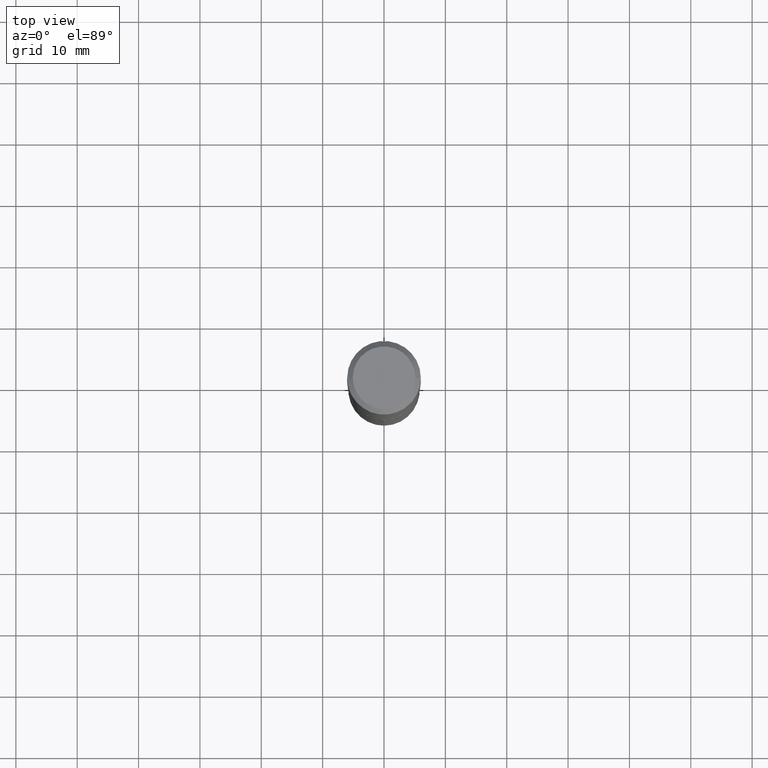
[diagram: clean part render]
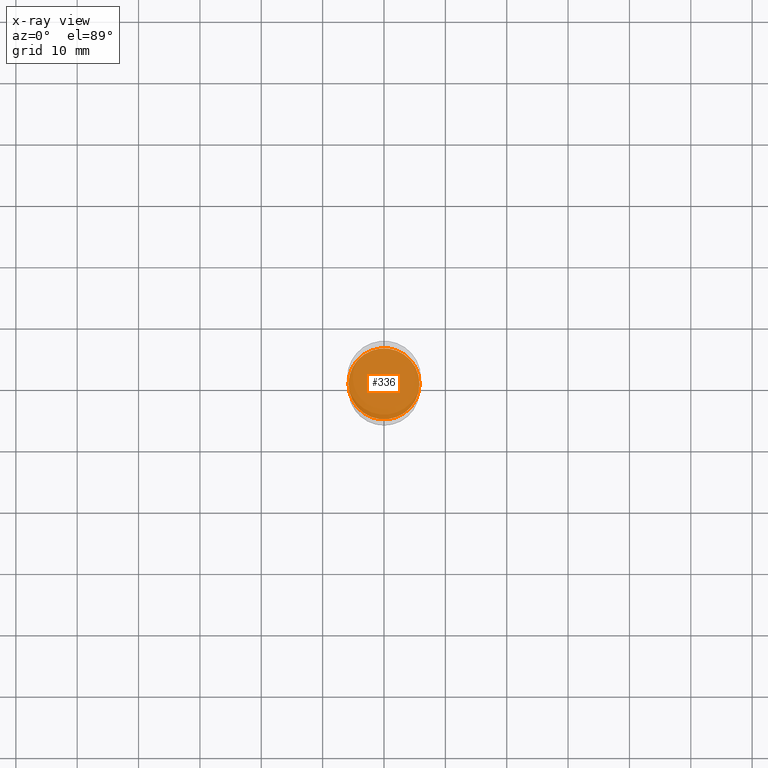
[diagram: x-ray — body ghosted, one internal face saturated and labeled with its STEP entity id]
A machine part, top view, then the same camera in x-ray: the body is ghosted and one INTERNAL B-rep face — a face not visible from any outside direction — is saturated and labeled: STEP entity #336.
In plain terms, the highlighted planar face has unit normal (-0, 0, 1).
Its self-contained STEP definition (entity closure, byte-faithful):
#2 = ORIENTED_EDGE ( 'NONE', *, *, #280, .F. ) ;
#39 = CARTESIAN_POINT ( 'NONE',  ( 5.641941082749727469E-29, -8.055196596845019678E-15, -2.307099999999999707 ) ) ;
#57 = CARTESIAN_POINT ( 'NONE',  ( 5.641941082749727469E-29, -8.055196596845019678E-15, -2.307099999999999707 ) ) ;
#130 = DIRECTION ( 'NONE',  ( -2.445468806185136597E-29, 3.491481338843145583E-15, 1.000000000000000000 ) ) ;
#136 = VERTEX_POINT ( 'NONE', #468 ) ;
#184 = DIRECTION ( 'NONE',  ( -2.445468806185136597E-29, 3.491481338843145583E-15, 1.000000000000000000 ) ) ;
#205 = VERTEX_POINT ( 'NONE', #251 ) ;
#231 = AXIS2_PLACEMENT_3D ( 'NONE', #57, #130, #281 ) ;
#251 = CARTESIAN_POINT ( 'NONE',  ( -0.2278499999999999970, -6.433575746241520225E-15, -2.307099999999999707 ) ) ;
#255 = CIRCLE ( 'NONE', #489, 0.2278499999999999970 ) ;
#267 = CARTESIAN_POINT ( 'NONE',  ( 5.641941082749727469E-29, -8.055196596845019678E-15, -2.307099999999999707 ) ) ;
#280 = EDGE_CURVE ( 'NONE', #136, #205, #255, .T. ) ;
#281 = DIRECTION ( 'NONE',  ( 1.000000000000000000, -6.982962677686269077E-15, 0.000000000000000000 ) ) ;
#305 = EDGE_LOOP ( 'NONE', ( #2, #407 ) ) ;
#307 = DIRECTION ( 'NONE',  ( 1.000000000000000000, -6.982962677686265922E-15, 4.876176775795935793E-29 ) ) ;
#336 = ADVANCED_FACE ( 'NONE', ( #375 ), #461, .F. ) ;
#350 = CIRCLE ( 'NONE', #231, 0.2278499999999999970 ) ;
#375 = FACE_OUTER_BOUND ( 'NONE', #305, .T. ) ;
#383 = DIRECTION ( 'NONE',  ( 1.000000000000000000, -6.982962677686269077E-15, 0.000000000000000000 ) ) ;
#407 = ORIENTED_EDGE ( 'NONE', *, *, #475, .F. ) ;
#424 = DIRECTION ( 'NONE',  ( -2.438088387897960049E-29, 3.491481338843145188E-15, 1.000000000000000000 ) ) ;
#461 = PLANE ( 'NONE',  #474 ) ;
#468 = CARTESIAN_POINT ( 'NONE',  ( 0.2278499999999999970, -9.646264642955835617E-15, -2.307099999999999707 ) ) ;
#474 = AXIS2_PLACEMENT_3D ( 'NONE', #267, #424, #307 ) ;
#475 = EDGE_CURVE ( 'NONE', #205, #136, #350, .T. ) ;
#489 = AXIS2_PLACEMENT_3D ( 'NONE', #39, #184, #383 ) ;